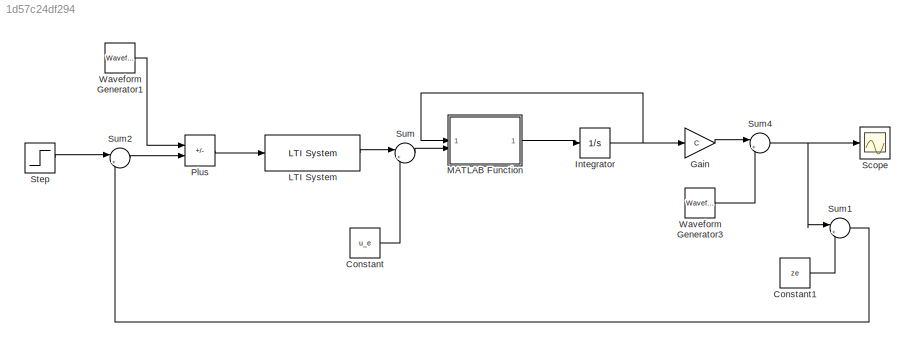
MODEL slx_1d57c24df294
KIND model
CONFIG AbsTol = auto
CONFIG EnableMultiTasking = off
CONFIG FixedStep = auto
CONFIG MaxStep = auto
CONFIG MinStep = auto
CONFIG RelTol = 1e-3
CONFIG SampleTimeConstraint = Unconstrained
CONFIG SolverName = VariableStepAuto
CONFIG StartTime = 0.0
CONFIG StopTime = 5
BLOCK [Constant] Constant
  Value = u_e
BLOCK [Constant] Constant1
  Value = ze
BLOCK [Gain] Gain
  Gain = C
  Multiplication = Matrix(K*u)
BLOCK [Integrator] Integrator
  InitialCondition = x_e
BLOCK [Reference] LTI System  REF=cstblocks/LTI System
  SourceBlock = cstblocks/LTI System
  SourceType = LTI Block
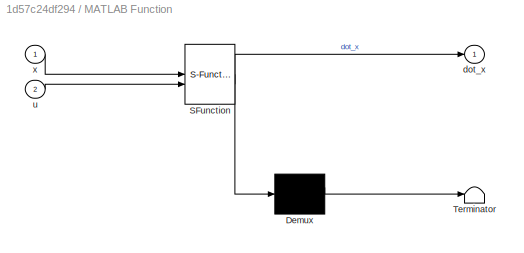
BLOCK [SubSystem] MATLAB Function
  ErrorFcn = Stateflow.Translate.translate
  PermitHierarchicalResolution = ExplicitOnly
  SFBlockType = MATLAB Function
  TreatAsAtomicUnit = on
BLOCK [Demux] MATLAB Function/ Demux 
  Outputs = 1
BLOCK [S-Function] MATLAB Function/ SFunction 
  EnableBusSupport = on
  FunctionName = sf_sfun
  PortCounts = [2 2]
  SFcnIsStateOwnerBlock = off
  SFunctionDeploymentMode = off
  Tag = Stateflow S-Function 2
BLOCK [Terminator] MATLAB Function/ Terminator 
BLOCK [Outport] MATLAB Function/dot_x
BLOCK [Inport] MATLAB Function/u
  Port = 2
BLOCK [Inport] MATLAB Function/x
BLOCK [Sum] Plus
  IconShape = rectangular
  Inputs = -+
BLOCK [Scope] Scope
  Floating = off
  NumInputPorts = 1
  ScopeSpecificationString = Simulink.scopes.TimeScopeBlockCfg('CurrentConfiguration', extmgr.ConfigurationSet(extmgr.Configuration('Core','General UI',true),extmgr.Configuration('Core','Source UI',true),extmgr.Configuration('Sources','WiredSimulink',true),extmgr.Configuration('Visuals','Time Domain',true,'SerializedDisplays',{struct('MinYLimReal','-0.03047','MaxYLimReal','1.72972','YLabelReal','','MinYLimMag','0.00000','MaxY...<+1395ch>
BLOCK [Step] Step
  SampleTime = 0
BLOCK [Sum] Sum
  Inputs = |++
BLOCK [Sum] Sum1
  Inputs = |+-
BLOCK [Sum] Sum2
  Inputs = |+-
BLOCK [Sum] Sum4
  Inputs = |++
BLOCK [Reference] Waveform Generator1  REF=simulink/Sources/Waveform
Generator
  SourceBlock = simulink/Sources/Waveform\nGenerator
  SourceType = WaveformGenerator
BLOCK [Reference] Waveform Generator3  REF=simulink/Sources/Waveform
Generator
  SourceBlock = simulink/Sources/Waveform\nGenerator
  SourceType = WaveformGenerator
LINE Constant1:1 -> Sum1:2
LINE Constant:1 -> Sum:2
LINE Gain:1 -> Sum4:1
NET Integrator:1 -> Gain:1, MATLAB Function:1
LINE LTI System:1 -> Sum:1
LINE MATLAB Function:1 -> Integrator:1
LINE Plus:1 -> LTI System:1
LINE Step:1 -> Sum2:1
LINE Sum1:1 -> Sum2:2
LINE Sum2:1 -> Plus:2
NET Sum4:1 -> Scope:1, Sum1:1
LINE Sum:1 -> MATLAB Function:2
LINE Waveform Generator1:1 -> Plus:1
LINE Waveform Generator3:1 -> Sum4:2
note: NET lines group one-source signal fan-out (src -> all destinations, sorted); 1:1 wires keep LINE
CHART MATLAB Function states=1 transitions=1
  STATE_LABEL 'eML_blk_kernel()'
  STATE_LABEL 'SCRIPT:\nfunction dot_x = fcn(x,u)\n\nm = 2500;       %% mass\nb = 350;        %% smorzamento\nk = 5*10^5;     %% cost. elastica lineare\nn = 3;\ng = 9.81;\nbeta = 0.1;\n\ndot_x = zeros(2,1);\n\ndot_x(1) = x(2);\n\ndot_x(2) = -g - b*x(2)/m - k*x(1)/m  + beta/m * (x(2)^3 + n*x(2)*sin(n*x(2))^2) + u/m;'
CHART  states=0 transitions=0
